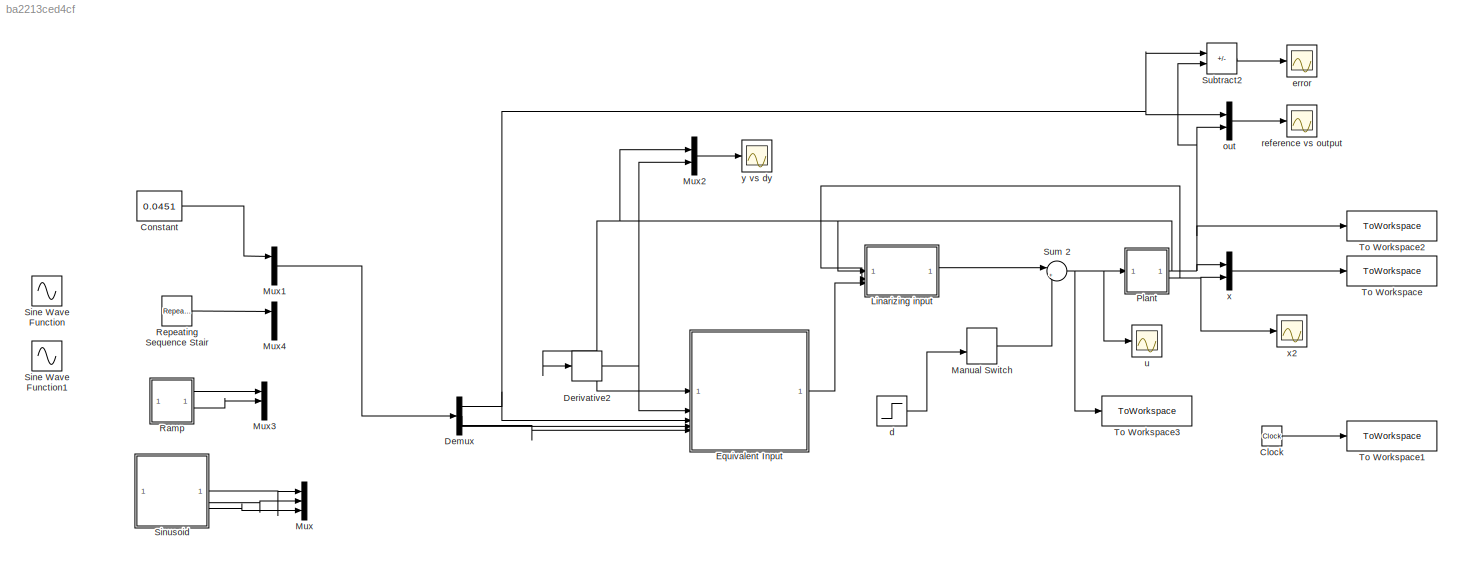
MODEL slx_ba2213ced4cf
KIND model
CONFIG AbsTol = auto
CONFIG EnableMultiTasking = off
CONFIG FixedStep = auto
CONFIG MaxStep = auto
CONFIG MinStep = auto
CONFIG RelTol = 1e-10
CONFIG SampleTimeConstraint = Unconstrained
CONFIG SolverName = VariableStepAuto
CONFIG StartTime = 0.0
CONFIG StopTime = 100
BLOCK [Clock] Clock
BLOCK [Constant] Constant
  Value = 0.0451
BLOCK [Demux] Demux
  Outputs = 3
BLOCK [Derivative] Derivative2
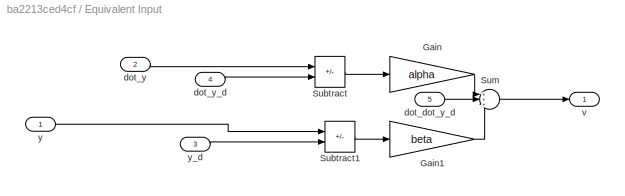
BLOCK [SubSystem] Equivalent Input
BLOCK [Gain] Equivalent Input/Gain
  Gain = alpha
BLOCK [Gain] Equivalent Input/Gain1
  Gain = beta
BLOCK [Sum] Equivalent Input/Subtract
  IconShape = rectangular
  Inputs = +-
BLOCK [Sum] Equivalent Input/Subtract1
  IconShape = rectangular
  Inputs = +-
BLOCK [Sum] Equivalent Input/Sum
  Inputs = +++
BLOCK [Inport] Equivalent Input/dot_dot_y_d
  Port = 5
BLOCK [Inport] Equivalent Input/dot_y
  Port = 2
BLOCK [Inport] Equivalent Input/dot_y_d
  Port = 4
BLOCK [Outport] Equivalent Input/v
BLOCK [Inport] Equivalent Input/y
BLOCK [Inport] Equivalent Input/y_d
  Port = 3
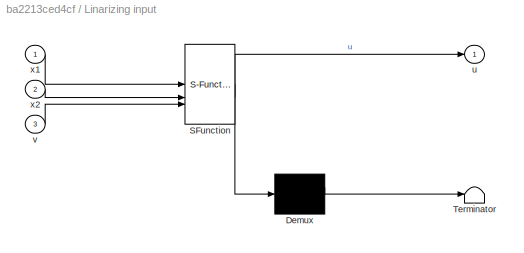
BLOCK [SubSystem] Linarizing input
  ErrorFcn = Stateflow.Translate.translate
  PermitHierarchicalResolution = ExplicitOnly
  SFBlockType = MATLAB Function
  TreatAsAtomicUnit = on
BLOCK [Demux] Linarizing input/ Demux 
  Outputs = 1
BLOCK [S-Function] Linarizing input/ SFunction 
  EnableBusSupport = on
  FunctionName = sf_sfun
  PortCounts = [3 2]
  SFcnIsStateOwnerBlock = off
  SFunctionDeploymentMode = off
  Tag = Stateflow S-Function 2
BLOCK [Terminator] Linarizing input/ Terminator 
BLOCK [Outport] Linarizing input/u
BLOCK [Inport] Linarizing input/v
  Port = 3
BLOCK [Inport] Linarizing input/x1
BLOCK [Inport] Linarizing input/x2
  Port = 2
BLOCK [ManualSwitch] Manual Switch
BLOCK [Mux] Mux
  DisplayOption = bar
  Inputs = 3
BLOCK [Mux] Mux1
  DisplayOption = bar
  Inputs = 3
BLOCK [Mux] Mux2
  DisplayOption = bar
  Inputs = 2
BLOCK [Mux] Mux3
  DisplayOption = bar
  Inputs = 3
BLOCK [Mux] Mux4
  DisplayOption = bar
  Inputs = 3
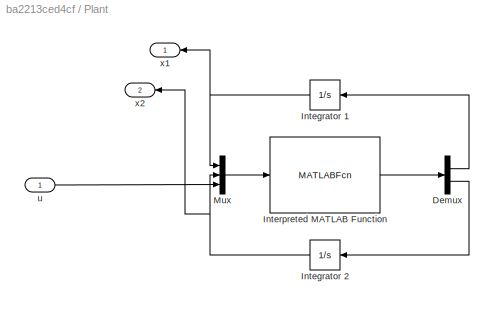
BLOCK [SubSystem] Plant
BLOCK [Demux] Plant/Demux
  Outputs = 2
BLOCK [Integrator] Plant/Integrator 1
  InitialCondition = x1_0
  NameLocation = top
BLOCK [Integrator] Plant/Integrator 2
  InitialCondition = x2_0
  NameLocation = top
BLOCK [MATLABFcn] Plant/Interpreted MATLAB Function
  MATLABFcn = SYS
  OutputDimensions = 2
BLOCK [Mux] Plant/Mux
  DisplayOption = bar
  Inputs = 3
BLOCK [Inport] Plant/u
BLOCK [Outport] Plant/x1
BLOCK [Outport] Plant/x2
  Port = 2
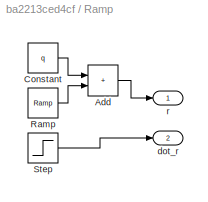
BLOCK [SubSystem] Ramp
BLOCK [Sum] Ramp/Add
  IconShape = rectangular
BLOCK [Constant] Ramp/Constant
  Value = q
BLOCK [Reference] Ramp/Ramp  REF=simulink/Sources/Ramp
  SourceBlock = simulink/Sources/Ramp
  SourceType = Ramp
BLOCK [Step] Ramp/Step
  After = s
  SampleTime = 0
  Time = 0
BLOCK [Outport] Ramp/dot_r
  Port = 2
BLOCK [Outport] Ramp/r
BLOCK [Reference] Repeating Sequence Stair  REF=simulink/Sources/Repeating
Sequence
Stair
  SourceBlock = simulink/Sources/Repeating\nSequence\nStair
  SourceType = Repeating Sequence Stair
BLOCK [Sin] Sine Wave Function
  Amplitude = 0.005
  Bias = 0.0451
  Frequency = 0.3
  SampleTime = 0
BLOCK [Sin] Sine Wave Function1
  Amplitude = 0.001
  Bias = 0.0451
  Frequency = 0.1
  SampleTime = 2
  Samples = 1
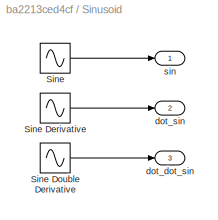
BLOCK [SubSystem] Sinusoid
BLOCK [Sin] Sinusoid/Sine
  Amplitude = A
  Bias = b
  Frequency = w
  Phase = phi
  SampleTime = 0
BLOCK [Sin] Sinusoid/Sine Derivative
  Amplitude = -A*w
  Frequency = w
  Phase = phi-pi/2
  SampleTime = 0
BLOCK [Sin] Sinusoid/Sine Double Derivative
  Amplitude = -A*w*w
  Frequency = w
  Phase = phi
  SampleTime = 0
BLOCK [Outport] Sinusoid/dot_dot_sin
  Port = 3
BLOCK [Outport] Sinusoid/dot_sin
  Port = 2
BLOCK [Outport] Sinusoid/sin
BLOCK [Sum] Subtract2
  IconShape = rectangular
  Inputs = +-
BLOCK [Sum] Sum 2
  Inputs = |++
  NameLocation = top
BLOCK [ToWorkspace] To Workspace
  FixptAsFi = on
  MaxDataPoints = inf
  SampleTime = -1
  VariableName = x
BLOCK [ToWorkspace] To Workspace1
  FixptAsFi = on
  MaxDataPoints = inf
  SampleTime = -1
  SaveFormat = Timeseries
  VariableName = t
BLOCK [ToWorkspace] To Workspace2
  FixptAsFi = on
  MaxDataPoints = inf
  SampleTime = -1
  VariableName = y
BLOCK [ToWorkspace] To Workspace3
  FixptAsFi = on
  MaxDataPoints = inf
  SampleTime = -1
  VariableName = u
BLOCK [Step] d
  After = -10
  SampleTime = 0
  Time = 5
BLOCK [Scope] error
  Floating = off
  NumInputPorts = 1
  ScopeSpecificationString = Simulink.scopes.TimeScopeBlockCfg('CurrentConfiguration', extmgr.ConfigurationSet(extmgr.Configuration('Core','General UI',true),extmgr.Configuration('Core','Source UI',true),extmgr.Configuration('Sources','WiredSimulink',true,'DataLoggingVariableName','ScopeData1'),extmgr.Configuration('Visuals','Time Domain',true,'SerializedDisplays',{struct('MinYLimReal','-0.00601','MaxYLimReal','0.05037','YLab...<+1999ch>
BLOCK [Mux] out
  DisplayOption = bar
  Inputs = 2
BLOCK [Scope] reference vs output
  Floating = off
  NumInputPorts = 1
  ScopeSpecificationString = Simulink.scopes.TimeScopeBlockCfg('CurrentConfiguration', extmgr.ConfigurationSet(extmgr.Configuration('Core','General UI',true),extmgr.Configuration('Core','Source UI',true),extmgr.Configuration('Sources','WiredSimulink',true),extmgr.Configuration('Visuals','Time Domain',true,'SerializedDisplays',{struct('MinYLimReal','0.03125','MaxYLimReal','0.16978','YLabelReal','','MinYLimMag','0.03125','MaxYL...<+1930ch>
BLOCK [Scope] u
  Floating = off
  NumInputPorts = 1
  ScopeSpecificationString = Simulink.scopes.TimeScopeBlockCfg('CurrentConfiguration', extmgr.ConfigurationSet(extmgr.Configuration('Core','General UI',true),extmgr.Configuration('Core','Source UI',true),extmgr.Configuration('Sources','WiredSimulink',true,'DataLoggingVariableName','ScopeData2'),extmgr.Configuration('Visuals','Time Domain',true,'SerializedDisplays',{struct('MinYLimReal','-193850022757315.75','MaxYLimReal','174...<+1633ch>
BLOCK [Mux] x
  DisplayOption = bar
  Inputs = 2
BLOCK [Scope] x2
  Floating = off
  NumInputPorts = 1
  ScopeSpecificationString = Simulink.scopes.TimeScopeBlockCfg('CurrentConfiguration', extmgr.ConfigurationSet(extmgr.Configuration('Core','General UI',true),extmgr.Configuration('Core','Source UI',true),extmgr.Configuration('Sources','WiredSimulink',true,'DataLoggingVariableName','ScopeData1'),extmgr.Configuration('Visuals','Time Domain',true,'SerializedDisplays',{struct('MinYLimReal','-0.03766','MaxYLimReal','0.33893','YLab...<+1815ch>
BLOCK [Scope] y vs dy
  Floating = off
  NumInputPorts = 1
  ScopeSpecificationString = Simulink.scopes.TimeScopeBlockCfg('CurrentConfiguration', extmgr.ConfigurationSet(extmgr.Configuration('Core','General UI',true),extmgr.Configuration('Core','Source UI',true),extmgr.Configuration('Sources','WiredSimulink',true,'DataLoggingVariableName','ScopeData1'),extmgr.Configuration('Visuals','Time Domain',true,'SerializedDisplays',{struct('MinYLimReal','-0.00348','MaxYLimReal','0.10975','YLab...<+2023ch>
LINE Clock:1 -> To Workspace1:1
LINE Constant:1 -> Mux1:1
NET Demux:1 -> Equivalent Input:3, Subtract2:1, out:1
LINE Demux:2 -> Equivalent Input:4
LINE Demux:3 -> Equivalent Input:5
NET Derivative2:1 -> Equivalent Input:2, Mux2:2
LINE Equivalent Input/Gain1:1 -> Equivalent Input/Sum:3
LINE Equivalent Input/Gain:1 -> Equivalent Input/Sum:1
LINE Equivalent Input/Subtract1:1 -> Equivalent Input/Gain1:1
LINE Equivalent Input/Subtract:1 -> Equivalent Input/Gain:1
LINE Equivalent Input/Sum:1 -> Equivalent Input/v:1
LINE Equivalent Input/dot_dot_y_d:1 -> Equivalent Input/Sum:2
LINE Equivalent Input/dot_y:1 -> Equivalent Input/Subtract:1
LINE Equivalent Input/dot_y_d:1 -> Equivalent Input/Subtract:2
LINE Equivalent Input/y:1 -> Equivalent Input/Subtract1:1
LINE Equivalent Input/y_d:1 -> Equivalent Input/Subtract1:2
LINE Equivalent Input:1 -> Linarizing input:3
LINE Linarizing input:1 -> Sum 2:1
LINE Manual Switch:1 -> Sum 2:2
LINE Mux1:1 -> Demux:1
LINE Mux2:1 -> y vs dy:1
LINE Plant/Demux:1 -> Plant/Integrator 1:1
LINE Plant/Demux:2 -> Plant/Integrator 2:1
NET Plant/Integrator 1:1 -> Plant/Mux:1, Plant/x1:1
NET Plant/Integrator 2:1 -> Plant/Mux:2, Plant/x2:1
LINE Plant/Interpreted MATLAB Function:1 -> Plant/Demux:1
LINE Plant/Mux:1 -> Plant/Interpreted MATLAB Function:1
LINE Plant/u:1 -> Plant/Mux:3
NET Plant:1 -> Derivative2:1, Equivalent Input:1, Linarizing input:1, Mux2:1, Subtract2:2, To Workspace2:1, out:2, x:1
NET Plant:2 -> Linarizing input:2, x2:1, x:2
LINE Ramp/Add:1 -> Ramp/r:1
LINE Ramp/Constant:1 -> Ramp/Add:1
LINE Ramp/Ramp:1 -> Ramp/Add:2
LINE Ramp/Step:1 -> Ramp/dot_r:1
LINE Ramp:1 -> Mux3:1
LINE Ramp:2 -> Mux3:2
LINE Repeating Sequence Stair:1 -> Mux4:1
LINE Sinusoid/Sine Derivative:1 -> Sinusoid/dot_sin:1
LINE Sinusoid/Sine Double Derivative:1 -> Sinusoid/dot_dot_sin:1
LINE Sinusoid/Sine:1 -> Sinusoid/sin:1
LINE Sinusoid:1 -> Mux:1
LINE Sinusoid:2 -> Mux:2
LINE Sinusoid:3 -> Mux:3
LINE Subtract2:1 -> error:1
NET Sum 2:1 -> Plant:1, To Workspace3:1, u:1
LINE d:1 -> Manual Switch:2
LINE out:1 -> reference vs output:1
LINE x:1 -> To Workspace:1
note: NET lines group one-source signal fan-out (src -> all destinations, sorted); 1:1 wires keep LINE
CHART Linarizing input states=1 transitions=1
  STATE_LABEL 'eML_blk_kernel()'
  STATE_LABEL "SCRIPT:\nfunction u = fcn(x1,x2,v)\n    p1 = 0.0151; %tasso base di rimozione del glucosio dal sangue\n    p2 = 0.0313; %tasso rimozione del glucosio dovuto all'insulina\n    p3 = 0.0097;\n    ge = 0.97;\n    ie = 0.003;\n    if x1 < 0.0000000001 %Messaggio di errore se lo stato x1 si annulla\n        warning('The state x1 is approaching zero. This could led the system to explode.')\n    end\n    \n    u = (...<+90ch>"
CHART  states=0 transitions=0
